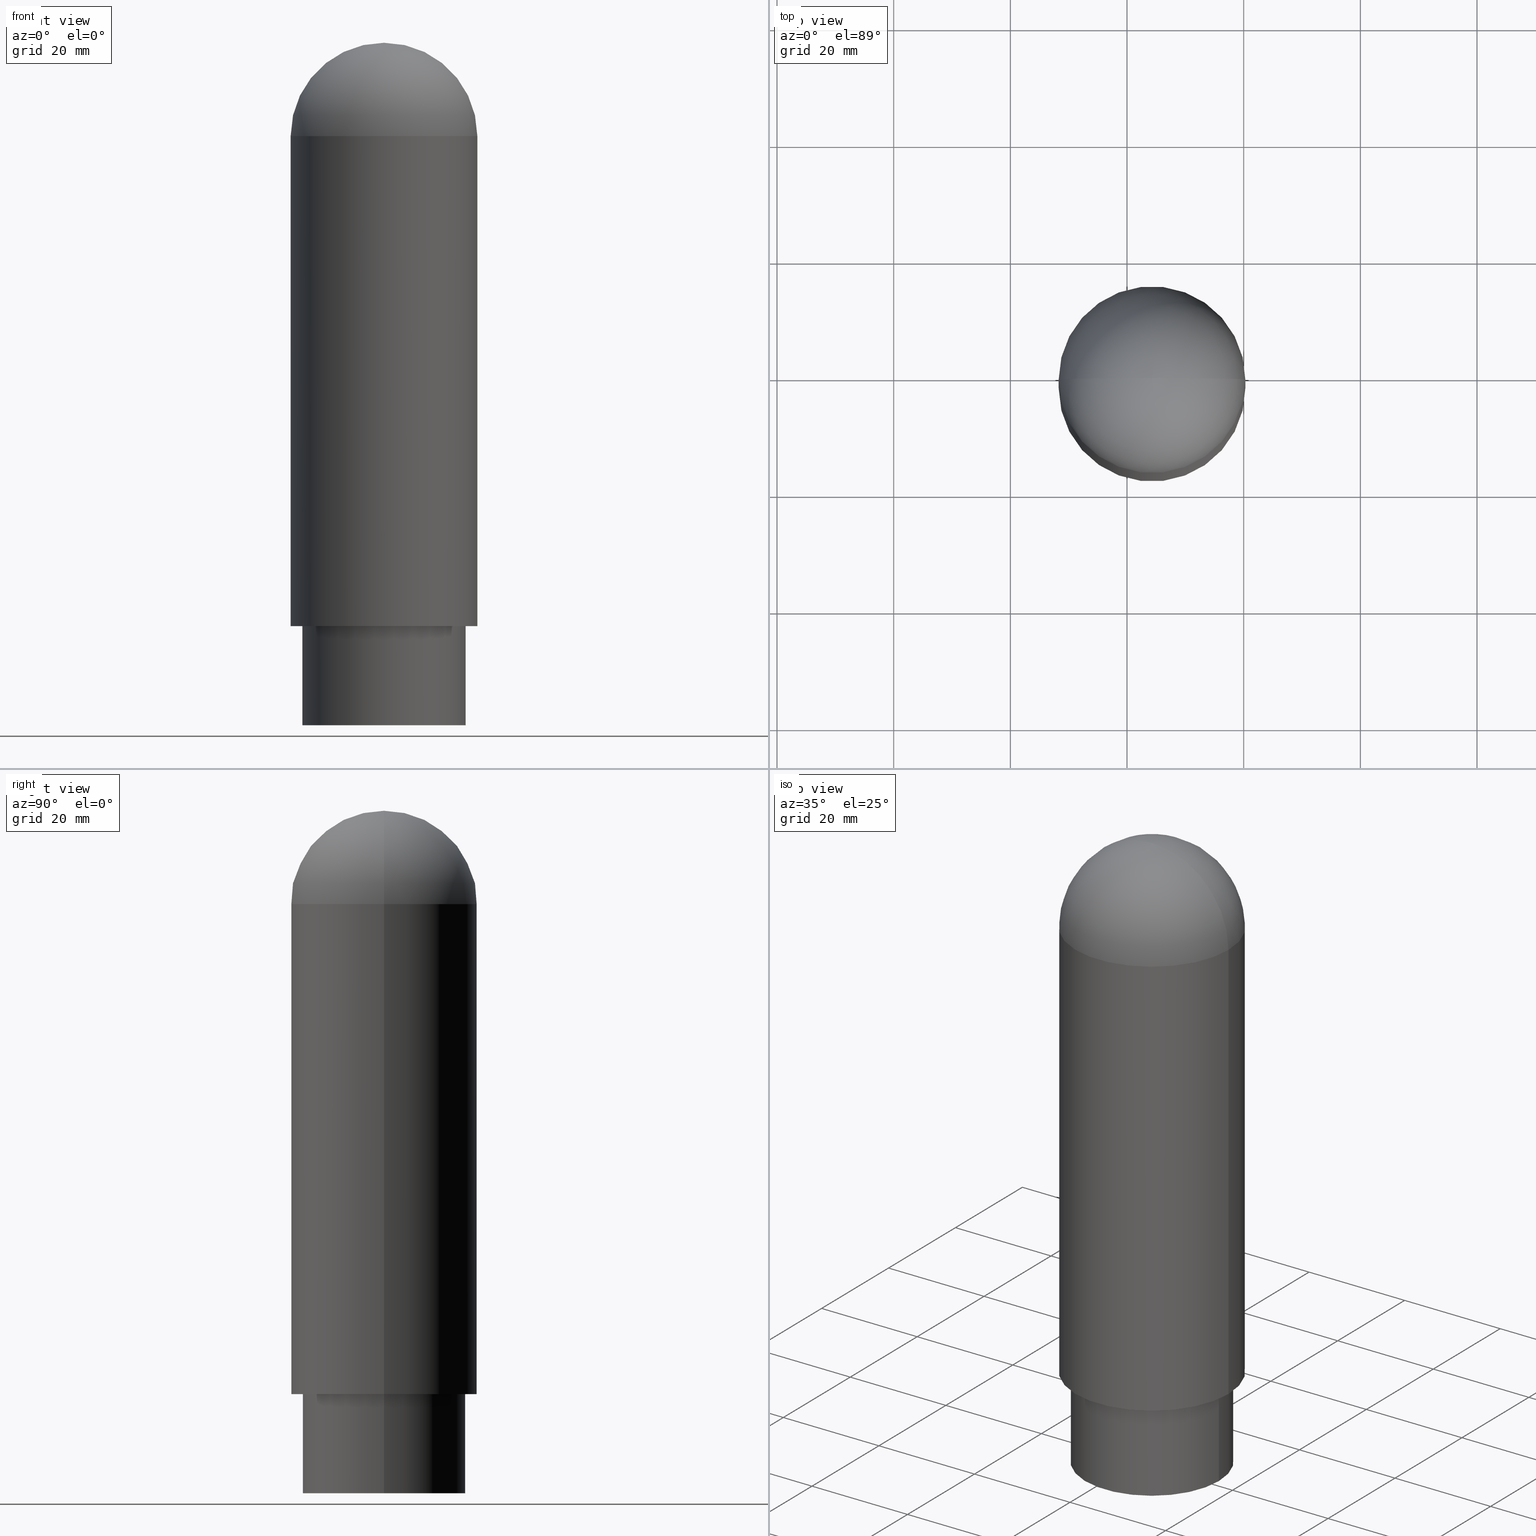
[diagram: canonical four-view strip — front | top / right | iso, engineering-drawing reading convention]
A machine part, canonical four-view strip (front | top / right | iso — engineering-drawing reading convention). The complete STEP part file that produces these views, byte-faithful:
ISO-10303-21;
HEADER;
/****************************************************************
 * Generated by software with PDE/Lib inside                    *
 * PDElib Version 4.0, created Mon Oct 07, 2002 at 18:44:48     *
 * International Technegroup Inc. (www.iti-oh.com)              *
 ****************************************************************/
FILE_DESCRIPTION((''),'2;1');
FILE_NAME('C:\\DATA\\V�KRESY 2004\\UP�NKY\\P��SLU�ENSTV� PRO T̎K� UP�NKY\\606P2.stp','2005-09-29T15:31:26',('CAD'),(''),'Autodesk Inventor 8','Autodesk Inventor 8','');
FILE_SCHEMA(('AUTOMOTIVE_DESIGN { 1 0 10303 214 1 1 1 1 }'));
ENDSEC;
DATA;
#5=APPLICATION_CONTEXT('automotive design');
#6=APPLICATION_PROTOCOL_DEFINITION('Draft International Standard','automotive_design',1998,#5);
#7=PRODUCT_CONTEXT('None',#5,'mechanical');
#8=PRODUCT('Part6','Part6','None',(#7));
#9=PRODUCT_RELATED_PRODUCT_CATEGORY('part','description',(#8));
#10=PRODUCT_DEFINITION_FORMATION('None','None',#8);
#11=PRODUCT_DEFINITION_CONTEXT('part definition',#5,'design');
#12=PRODUCT_DEFINITION('None','None',#10,#11);
#18=(NAMED_UNIT(*)PLANE_ANGLE_UNIT()SI_UNIT($,.RADIAN.));
#19=DIMENSIONAL_EXPONENTS(0.0,0.0,0.0,0.0,0.0,0.0,0.0);
#20=PLANE_ANGLE_MEASURE_WITH_UNIT(PLANE_ANGLE_MEASURE(0.017453292500000),#18);
#24=(CONVERSION_BASED_UNIT('DEGREE',#20)NAMED_UNIT(#19)PLANE_ANGLE_UNIT());
#28=(NAMED_UNIT(*)SI_UNIT($,.STERADIAN.)SOLID_ANGLE_UNIT());
#32=(LENGTH_UNIT()NAMED_UNIT(*)SI_UNIT(.MILLI.,.METRE.));
#34=UNCERTAINTY_MEASURE_WITH_UNIT(LENGTH_MEASURE(0.000001000000000),#32,'DISTANCE_ACCURACY_VALUE','');
#36=(GEOMETRIC_REPRESENTATION_CONTEXT(3)GLOBAL_UNCERTAINTY_ASSIGNED_CONTEXT((#34))GLOBAL_UNIT_ASSIGNED_CONTEXT((#24,#28,#32))REPRESENTATION_CONTEXT('None','None'));
#37=AXIS2_PLACEMENT_3D('',#38,#39,#40);
#38=CARTESIAN_POINT('',(0.0,0.0,0.0));
#39=DIRECTION('',(0.0,0.0,1.0));
#40=DIRECTION('',(1.0,0.0,0.0));
#41=SHAPE_REPRESENTATION('',(#37),#36);
#42=PRODUCT_DEFINITION_SHAPE('','',#12);
#43=SHAPE_DEFINITION_REPRESENTATION(#42,#41);
#44=CARTESIAN_POINT('',(4.283053939901920,-1.613904443833871,0.0));
#45=DIRECTION('',(0.0,0.0,1.0));
#46=DIRECTION('',(-1.0,0.0,0.0));
#47=AXIS2_PLACEMENT_3D('',#44,#45,#46);
#48=CYLINDRICAL_SURFACE('',#47,14.000000000000002);
#49=CARTESIAN_POINT('',(-9.716946060098081,-1.613904443833869,0.0));
#50=VERTEX_POINT('',#49);
#51=CARTESIAN_POINT('',(-9.716946060098081,-1.613904443833869,17.000000000000011));
#52=VERTEX_POINT('',#51);
#53=CARTESIAN_POINT('',(-9.716946060098081,-1.613904443833869,0.0));
#54=DIRECTION('',(0.0,0.0,1.0));
#55=VECTOR('',#54,17.000000000000011);
#56=LINE('',#53,#55);
#57=EDGE_CURVE('',#50,#52,#56,.T.);
#58=ORIENTED_EDGE('',*,*,#57,.F.);
#59=CARTESIAN_POINT('',(18.283053939901922,-1.613904443833869,0.0));
#60=VERTEX_POINT('',#59);
#61=CARTESIAN_POINT('',(4.283053939901920,-1.613904443833871,0.0));
#62=DIRECTION('',(0.0,0.0,-1.0));
#63=DIRECTION('',(-1.0,0.0,0.0));
#64=AXIS2_PLACEMENT_3D('',#61,#62,#63);
#65=CIRCLE('',#64,14.000000000000002);
#66=EDGE_CURVE('',#60,#50,#65,.T.);
#67=ORIENTED_EDGE('',*,*,#66,.F.);
#68=CARTESIAN_POINT('',(18.283053939901922,-1.613904443833869,17.000000000000011));
#69=VERTEX_POINT('',#68);
#70=CARTESIAN_POINT('',(18.283053939901922,-1.613904443833869,17.000000000000011));
#71=DIRECTION('',(0.0,0.0,-1.0));
#72=VECTOR('',#71,17.000000000000011);
#73=LINE('',#70,#72);
#74=EDGE_CURVE('',#69,#60,#73,.T.);
#75=ORIENTED_EDGE('',*,*,#74,.F.);
#76=CARTESIAN_POINT('',(4.283053939901920,-1.613904443833871,17.000000000000011));
#77=DIRECTION('',(0.0,0.0,-1.0));
#78=DIRECTION('',(-1.0,0.0,0.0));
#79=AXIS2_PLACEMENT_3D('',#76,#77,#78);
#80=CIRCLE('',#79,14.000000000000002);
#81=EDGE_CURVE('',#69,#52,#80,.T.);
#82=ORIENTED_EDGE('',*,*,#81,.T.);
#83=EDGE_LOOP('',(#58,#67,#75,#82));
#84=FACE_OUTER_BOUND('',#83,.T.);
#85=ADVANCED_FACE('',(#84),#48,.T.);
#86=CARTESIAN_POINT('',(4.283053939901920,-1.613904443833871,0.0));
#87=DIRECTION('',(0.0,0.0,1.0));
#88=DIRECTION('',(-1.0,0.0,0.0));
#89=AXIS2_PLACEMENT_3D('',#86,#87,#88);
#90=CYLINDRICAL_SURFACE('',#89,11.0);
#91=CARTESIAN_POINT('',(-6.716946060098080,-1.613904443833870,93.0));
#92=VERTEX_POINT('',#91);
#93=CARTESIAN_POINT('',(-6.716946060098080,-1.613904443833870,0.0));
#94=VERTEX_POINT('',#93);
#95=CARTESIAN_POINT('',(-6.716946060098080,-1.613904443833870,93.0));
#96=DIRECTION('',(0.0,0.0,-1.0));
#97=VECTOR('',#96,93.0);
#98=LINE('',#95,#97);
#99=EDGE_CURVE('',#92,#94,#98,.T.);
#100=ORIENTED_EDGE('',*,*,#99,.F.);
#101=CARTESIAN_POINT('',(15.283053939901921,-1.613904443833870,93.0));
#102=VERTEX_POINT('',#101);
#103=CARTESIAN_POINT('',(4.283053939901920,-1.613904443833871,93.0));
#104=DIRECTION('',(0.0,0.0,1.0));
#105=DIRECTION('',(-1.0,0.0,0.0));
#106=AXIS2_PLACEMENT_3D('',#103,#104,#105);
#107=CIRCLE('',#106,11.0);
#108=EDGE_CURVE('',#92,#102,#107,.T.);
#109=ORIENTED_EDGE('',*,*,#108,.T.);
#110=CARTESIAN_POINT('',(15.283053939901921,-1.613904443833870,0.0));
#111=VERTEX_POINT('',#110);
#112=CARTESIAN_POINT('',(15.283053939901921,-1.613904443833870,0.0));
#113=DIRECTION('',(0.0,0.0,1.0));
#114=VECTOR('',#113,93.0);
#115=LINE('',#112,#114);
#116=EDGE_CURVE('',#111,#102,#115,.T.);
#117=ORIENTED_EDGE('',*,*,#116,.F.);
#118=CARTESIAN_POINT('',(4.283053939901920,-1.613904443833871,0.0));
#119=DIRECTION('',(0.0,0.0,1.0));
#120=DIRECTION('',(-1.0,0.0,0.0));
#121=AXIS2_PLACEMENT_3D('',#118,#119,#120);
#122=CIRCLE('',#121,11.0);
#123=EDGE_CURVE('',#94,#111,#122,.T.);
#124=ORIENTED_EDGE('',*,*,#123,.F.);
#125=EDGE_LOOP('',(#100,#109,#117,#124));
#126=FACE_OUTER_BOUND('',#125,.T.);
#127=ADVANCED_FACE('',(#126),#90,.F.);
#128=CARTESIAN_POINT('',(4.283053939901920,-1.613904443833871,101.000000000000010));
#129=DIRECTION('',(0.0,0.0,-1.0));
#130=DIRECTION('',(-1.0,0.0,0.0));
#131=AXIS2_PLACEMENT_3D('',#128,#129,#130);
#132=CYLINDRICAL_SURFACE('',#131,11.500000000000002);
#133=CARTESIAN_POINT('',(-7.216946060098082,-1.613904443833873,93.0));
#134=VERTEX_POINT('',#133);
#135=CARTESIAN_POINT('',(-7.216946060098082,-1.613904443833873,94.500000000000028));
#136=VERTEX_POINT('',#135);
#137=CARTESIAN_POINT('',(-7.216946060098082,-1.613904443833873,93.0));
#138=DIRECTION('',(0.0,0.0,1.0));
#139=VECTOR('',#138,1.500000000000028);
#140=LINE('',#137,#139);
#141=EDGE_CURVE('',#134,#136,#140,.T.);
#142=ORIENTED_EDGE('',*,*,#141,.F.);
#143=CARTESIAN_POINT('',(15.783053939901921,-1.613904443833870,93.0));
#144=VERTEX_POINT('',#143);
#145=CARTESIAN_POINT('',(4.283053939901920,-1.613904443833871,93.0));
#146=DIRECTION('',(0.0,0.0,1.0));
#147=DIRECTION('',(-1.0,0.0,0.0));
#148=AXIS2_PLACEMENT_3D('',#145,#146,#147);
#149=CIRCLE('',#148,11.500000000000002);
#150=EDGE_CURVE('',#144,#134,#149,.T.);
#151=ORIENTED_EDGE('',*,*,#150,.F.);
#152=CARTESIAN_POINT('',(15.783053939901921,-1.613904443833872,94.500000000000014));
#153=VERTEX_POINT('',#152);
#154=CARTESIAN_POINT('',(15.783053939901921,-1.613904443833872,94.500000000000014));
#155=DIRECTION('',(0.0,0.0,-1.0));
#156=VECTOR('',#155,1.500000000000014);
#157=LINE('',#154,#156);
#158=EDGE_CURVE('',#153,#144,#157,.T.);
#159=ORIENTED_EDGE('',*,*,#158,.F.);
#160=CARTESIAN_POINT('',(4.283053939901920,-1.613904443833871,94.500000000000014));
#161=DIRECTION('',(0.0,0.0,1.0));
#162=DIRECTION('',(-1.0,0.0,0.0));
#163=AXIS2_PLACEMENT_3D('',#160,#161,#162);
#164=CIRCLE('',#163,11.500000000000002);
#165=EDGE_CURVE('',#153,#136,#164,.T.);
#166=ORIENTED_EDGE('',*,*,#165,.T.);
#167=EDGE_LOOP('',(#142,#151,#159,#166));
#168=FACE_OUTER_BOUND('',#167,.T.);
#169=ADVANCED_FACE('',(#168),#132,.F.);
#170=CARTESIAN_POINT('',(4.283053939901920,-1.613904443833871,94.250000000000000));
#171=DIRECTION('',(0.0,0.0,1.0));
#172=DIRECTION('',(-1.0,0.0,0.0));
#173=AXIS2_PLACEMENT_3D('',#170,#171,#172);
#174=CONICAL_SURFACE('',#173,11.250000000000000,45.000000000000135);
#175=CARTESIAN_POINT('',(-6.716946060098080,-1.613904443833873,94.000000000000028));
#176=VERTEX_POINT('',#175);
#177=CARTESIAN_POINT('',(-7.216946060098082,-1.613904443833873,94.500000000000028));
#178=DIRECTION('',(0.707106781186549,0.0,-0.707106781186546));
#179=VECTOR('',#178,0.707106781186549);
#180=LINE('',#177,#179);
#181=EDGE_CURVE('',#136,#176,#180,.T.);
#182=ORIENTED_EDGE('',*,*,#181,.F.);
#183=ORIENTED_EDGE('',*,*,#165,.F.);
#184=CARTESIAN_POINT('',(15.283053939901919,-1.613904443833870,94.000000000000028));
#185=VERTEX_POINT('',#184);
#186=CARTESIAN_POINT('',(15.283053939901919,-1.613904443833870,94.000000000000028));
#187=DIRECTION('',(0.707106781186559,-3.140185E-015,0.707106781186536));
#188=VECTOR('',#187,0.707106781186539);
#189=LINE('',#186,#188);
#190=EDGE_CURVE('',#185,#153,#189,.T.);
#191=ORIENTED_EDGE('',*,*,#190,.F.);
#192=CARTESIAN_POINT('',(4.283053939901920,-1.613904443833871,94.000000000000028));
#193=DIRECTION('',(0.0,0.0,1.0));
#194=DIRECTION('',(-1.0,0.0,0.0));
#195=AXIS2_PLACEMENT_3D('',#192,#193,#194);
#196=CIRCLE('',#195,11.0);
#197=EDGE_CURVE('',#185,#176,#196,.T.);
#198=ORIENTED_EDGE('',*,*,#197,.T.);
#199=EDGE_LOOP('',(#182,#183,#191,#198));
#200=FACE_OUTER_BOUND('',#199,.T.);
#201=ADVANCED_FACE('',(#200),#174,.T.);
#202=CARTESIAN_POINT('',(4.283053939901920,-1.613904443833871,17.000000000000011));
#203=DIRECTION('',(0.0,0.0,1.0));
#204=DIRECTION('',(-1.0,0.0,0.0));
#205=AXIS2_PLACEMENT_3D('',#202,#203,#204);
#206=CYLINDRICAL_SURFACE('',#205,16.0);
#207=CARTESIAN_POINT('',(-11.716946060098081,-1.613904443833869,17.000000000000014));
#208=VERTEX_POINT('',#207);
#209=CARTESIAN_POINT('',(-11.716946060098081,-1.613904443833869,101.000000000000010));
#210=VERTEX_POINT('',#209);
#211=CARTESIAN_POINT('',(-11.716946060098081,-1.613904443833869,17.000000000000014));
#212=DIRECTION('',(0.0,0.0,1.0));
#213=VECTOR('',#212,84.0);
#214=LINE('',#211,#213);
#215=EDGE_CURVE('',#208,#210,#214,.T.);
#216=ORIENTED_EDGE('',*,*,#215,.F.);
#217=CARTESIAN_POINT('',(20.283053939901919,-1.613904443833869,17.000000000000011));
#218=VERTEX_POINT('',#217);
#219=CARTESIAN_POINT('',(4.283053939901920,-1.613904443833871,17.000000000000011));
#220=DIRECTION('',(0.0,0.0,-1.0));
#221=DIRECTION('',(-1.0,0.0,0.0));
#222=AXIS2_PLACEMENT_3D('',#219,#220,#221);
#223=CIRCLE('',#222,16.0);
#224=EDGE_CURVE('',#218,#208,#223,.T.);
#225=ORIENTED_EDGE('',*,*,#224,.F.);
#226=CARTESIAN_POINT('',(20.283053939901919,-1.613904443833869,101.000000000000010));
#227=VERTEX_POINT('',#226);
#228=CARTESIAN_POINT('',(20.283053939901919,-1.613904443833869,101.000000000000010));
#229=DIRECTION('',(0.0,0.0,-1.0));
#230=VECTOR('',#229,84.0);
#231=LINE('',#228,#230);
#232=EDGE_CURVE('',#227,#218,#231,.T.);
#233=ORIENTED_EDGE('',*,*,#232,.F.);
#234=CARTESIAN_POINT('',(4.283053939901920,-1.613904443833871,101.000000000000010));
#235=DIRECTION('',(0.0,0.0,1.0));
#236=DIRECTION('',(-1.0,0.0,0.0));
#237=AXIS2_PLACEMENT_3D('',#234,#235,#236);
#238=CIRCLE('',#237,16.0);
#239=EDGE_CURVE('',#210,#227,#238,.T.);
#240=ORIENTED_EDGE('',*,*,#239,.F.);
#241=EDGE_LOOP('',(#216,#225,#233,#240));
#242=FACE_OUTER_BOUND('',#241,.T.);
#243=ADVANCED_FACE('',(#242),#206,.T.);
#244=CARTESIAN_POINT('',(4.283053939901920,-1.613904443833871,101.000000000000010));
#245=DIRECTION('',(0.0,0.0,1.0));
#246=DIRECTION('',(1.0,0.0,0.0));
#247=AXIS2_PLACEMENT_3D('',#244,#245,#246);
#248=SPHERICAL_SURFACE('',#247,16.0);
#249=CARTESIAN_POINT('',(4.283053939901920,-1.613904443833871,101.000000000000010));
#250=DIRECTION('',(0.0,-1.0,0.0));
#251=DIRECTION('',(0.0,0.0,1.0));
#252=AXIS2_PLACEMENT_3D('',#249,#250,#251);
#253=CIRCLE('',#252,16.0);
#254=EDGE_CURVE('',#227,#210,#253,.T.);
#255=ORIENTED_EDGE('',*,*,#254,.F.);
#256=CARTESIAN_POINT('',(4.283053939901920,-1.613904443833871,101.000000000000010));
#257=DIRECTION('',(0.0,0.0,1.0));
#258=DIRECTION('',(-1.0,0.0,0.0));
#259=AXIS2_PLACEMENT_3D('',#256,#257,#258);
#260=CIRCLE('',#259,16.0);
#261=EDGE_CURVE('',#227,#210,#260,.T.);
#262=ORIENTED_EDGE('',*,*,#261,.T.);
#263=EDGE_LOOP('',(#255,#262));
#264=FACE_OUTER_BOUND('',#263,.T.);
#265=ADVANCED_FACE('',(#264),#248,.T.);
#266=CARTESIAN_POINT('',(4.283053939901920,-1.613904443833871,101.000000000000010));
#267=DIRECTION('',(0.0,0.0,1.0));
#268=DIRECTION('',(1.0,0.0,0.0));
#269=AXIS2_PLACEMENT_3D('',#266,#267,#268);
#270=SPHERICAL_SURFACE('',#269,16.0);
#271=ORIENTED_EDGE('',*,*,#254,.T.);
#272=ORIENTED_EDGE('',*,*,#239,.T.);
#273=EDGE_LOOP('',(#271,#272));
#274=FACE_OUTER_BOUND('',#273,.T.);
#275=ADVANCED_FACE('',(#274),#270,.T.);
#276=CARTESIAN_POINT('',(4.283053939901920,-1.613904443833871,17.000000000000011));
#277=DIRECTION('',(0.0,0.0,1.0));
#278=DIRECTION('',(-1.0,0.0,0.0));
#279=AXIS2_PLACEMENT_3D('',#276,#277,#278);
#280=CYLINDRICAL_SURFACE('',#279,16.0);
#281=ORIENTED_EDGE('',*,*,#215,.T.);
#282=ORIENTED_EDGE('',*,*,#261,.F.);
#283=ORIENTED_EDGE('',*,*,#232,.T.);
#284=CARTESIAN_POINT('',(4.283053939901920,-1.613904443833871,17.000000000000011));
#285=DIRECTION('',(0.0,0.0,-1.0));
#286=DIRECTION('',(-1.0,0.0,0.0));
#287=AXIS2_PLACEMENT_3D('',#284,#285,#286);
#288=CIRCLE('',#287,16.0);
#289=EDGE_CURVE('',#208,#218,#288,.T.);
#290=ORIENTED_EDGE('',*,*,#289,.F.);
#291=EDGE_LOOP('',(#281,#282,#283,#290));
#292=FACE_OUTER_BOUND('',#291,.T.);
#293=ADVANCED_FACE('',(#292),#280,.T.);
#294=CARTESIAN_POINT('',(4.283053939901920,-1.613904443833871,17.000000000000011));
#295=DIRECTION('',(0.0,0.0,-1.0));
#296=DIRECTION('',(-1.0,0.0,0.0));
#297=AXIS2_PLACEMENT_3D('',#294,#295,#296);
#298=PLANE('',#297);
#299=ORIENTED_EDGE('',*,*,#224,.T.);
#300=ORIENTED_EDGE('',*,*,#289,.T.);
#301=EDGE_LOOP('',(#299,#300));
#302=FACE_OUTER_BOUND('',#301,.T.);
#303=ORIENTED_EDGE('',*,*,#81,.F.);
#304=CARTESIAN_POINT('',(4.283053939901920,-1.613904443833871,17.000000000000011));
#305=DIRECTION('',(0.0,0.0,-1.0));
#306=DIRECTION('',(-1.0,0.0,0.0));
#307=AXIS2_PLACEMENT_3D('',#304,#305,#306);
#308=CIRCLE('',#307,14.000000000000002);
#309=EDGE_CURVE('',#52,#69,#308,.T.);
#310=ORIENTED_EDGE('',*,*,#309,.F.);
#311=EDGE_LOOP('',(#303,#310));
#312=FACE_BOUND('',#311,.T.);
#313=ADVANCED_FACE('',(#302,#312),#298,.T.);
#314=CARTESIAN_POINT('',(4.283053939901920,-1.613904443833871,94.250000000000000));
#315=DIRECTION('',(0.0,0.0,1.0));
#316=DIRECTION('',(-1.0,0.0,0.0));
#317=AXIS2_PLACEMENT_3D('',#314,#315,#316);
#318=CONICAL_SURFACE('',#317,11.250000000000000,45.000000000000135);
#319=ORIENTED_EDGE('',*,*,#181,.T.);
#320=CARTESIAN_POINT('',(4.283053939901920,-1.613904443833871,94.000000000000028));
#321=DIRECTION('',(0.0,0.0,1.0));
#322=DIRECTION('',(-1.0,0.0,0.0));
#323=AXIS2_PLACEMENT_3D('',#320,#321,#322);
#324=CIRCLE('',#323,11.0);
#325=EDGE_CURVE('',#176,#185,#324,.T.);
#326=ORIENTED_EDGE('',*,*,#325,.T.);
#327=ORIENTED_EDGE('',*,*,#190,.T.);
#328=CARTESIAN_POINT('',(4.283053939901920,-1.613904443833871,94.500000000000014));
#329=DIRECTION('',(0.0,0.0,1.0));
#330=DIRECTION('',(-1.0,0.0,0.0));
#331=AXIS2_PLACEMENT_3D('',#328,#329,#330);
#332=CIRCLE('',#331,11.500000000000002);
#333=EDGE_CURVE('',#136,#153,#332,.T.);
#334=ORIENTED_EDGE('',*,*,#333,.F.);
#335=EDGE_LOOP('',(#319,#326,#327,#334));
#336=FACE_OUTER_BOUND('',#335,.T.);
#337=ADVANCED_FACE('',(#336),#318,.T.);
#338=CARTESIAN_POINT('',(4.283053939901920,-1.613904443833871,94.000000000000028));
#339=DIRECTION('',(0.0,0.0,1.0));
#340=DIRECTION('',(-1.0,0.0,0.0));
#341=AXIS2_PLACEMENT_3D('',#338,#339,#340);
#342=PLANE('',#341);
#343=ORIENTED_EDGE('',*,*,#197,.F.);
#344=ORIENTED_EDGE('',*,*,#325,.F.);
#345=EDGE_LOOP('',(#343,#344));
#346=FACE_OUTER_BOUND('',#345,.T.);
#347=ADVANCED_FACE('',(#346),#342,.F.);
#348=CARTESIAN_POINT('',(4.283053939901920,-1.613904443833871,101.000000000000010));
#349=DIRECTION('',(0.0,0.0,-1.0));
#350=DIRECTION('',(-1.0,0.0,0.0));
#351=AXIS2_PLACEMENT_3D('',#348,#349,#350);
#352=CYLINDRICAL_SURFACE('',#351,11.500000000000002);
#353=ORIENTED_EDGE('',*,*,#141,.T.);
#354=ORIENTED_EDGE('',*,*,#333,.T.);
#355=ORIENTED_EDGE('',*,*,#158,.T.);
#356=CARTESIAN_POINT('',(4.283053939901920,-1.613904443833871,93.0));
#357=DIRECTION('',(0.0,0.0,1.0));
#358=DIRECTION('',(-1.0,0.0,0.0));
#359=AXIS2_PLACEMENT_3D('',#356,#357,#358);
#360=CIRCLE('',#359,11.500000000000002);
#361=EDGE_CURVE('',#134,#144,#360,.T.);
#362=ORIENTED_EDGE('',*,*,#361,.F.);
#363=EDGE_LOOP('',(#353,#354,#355,#362));
#364=FACE_OUTER_BOUND('',#363,.T.);
#365=ADVANCED_FACE('',(#364),#352,.F.);
#366=CARTESIAN_POINT('',(4.283053939901920,-1.613904443833871,93.0));
#367=DIRECTION('',(0.0,0.0,-1.0));
#368=DIRECTION('',(-1.0,0.0,0.0));
#369=AXIS2_PLACEMENT_3D('',#366,#367,#368);
#370=PLANE('',#369);
#371=ORIENTED_EDGE('',*,*,#150,.T.);
#372=ORIENTED_EDGE('',*,*,#361,.T.);
#373=EDGE_LOOP('',(#371,#372));
#374=FACE_OUTER_BOUND('',#373,.T.);
#375=CARTESIAN_POINT('',(4.283053939901920,-1.613904443833871,93.0));
#376=DIRECTION('',(0.0,0.0,1.0));
#377=DIRECTION('',(-1.0,0.0,0.0));
#378=AXIS2_PLACEMENT_3D('',#375,#376,#377);
#379=CIRCLE('',#378,11.0);
#380=EDGE_CURVE('',#102,#92,#379,.T.);
#381=ORIENTED_EDGE('',*,*,#380,.F.);
#382=ORIENTED_EDGE('',*,*,#108,.F.);
#383=EDGE_LOOP('',(#381,#382));
#384=FACE_BOUND('',#383,.T.);
#385=ADVANCED_FACE('',(#374,#384),#370,.F.);
#386=CARTESIAN_POINT('',(4.283053939901920,-1.613904443833871,0.0));
#387=DIRECTION('',(0.0,0.0,1.0));
#388=DIRECTION('',(-1.0,0.0,0.0));
#389=AXIS2_PLACEMENT_3D('',#386,#387,#388);
#390=CYLINDRICAL_SURFACE('',#389,11.0);
#391=ORIENTED_EDGE('',*,*,#99,.T.);
#392=CARTESIAN_POINT('',(4.283053939901920,-1.613904443833871,0.0));
#393=DIRECTION('',(0.0,0.0,1.0));
#394=DIRECTION('',(-1.0,0.0,0.0));
#395=AXIS2_PLACEMENT_3D('',#392,#393,#394);
#396=CIRCLE('',#395,11.0);
#397=EDGE_CURVE('',#111,#94,#396,.T.);
#398=ORIENTED_EDGE('',*,*,#397,.F.);
#399=ORIENTED_EDGE('',*,*,#116,.T.);
#400=ORIENTED_EDGE('',*,*,#380,.T.);
#401=EDGE_LOOP('',(#391,#398,#399,#400));
#402=FACE_OUTER_BOUND('',#401,.T.);
#403=ADVANCED_FACE('',(#402),#390,.F.);
#404=CARTESIAN_POINT('',(4.283053939901920,-1.613904443833871,0.0));
#405=DIRECTION('',(0.0,0.0,1.0));
#406=DIRECTION('',(-1.0,0.0,0.0));
#407=AXIS2_PLACEMENT_3D('',#404,#405,#406);
#408=CYLINDRICAL_SURFACE('',#407,14.000000000000002);
#409=ORIENTED_EDGE('',*,*,#57,.T.);
#410=ORIENTED_EDGE('',*,*,#309,.T.);
#411=ORIENTED_EDGE('',*,*,#74,.T.);
#412=CARTESIAN_POINT('',(4.283053939901920,-1.613904443833871,0.0));
#413=DIRECTION('',(0.0,0.0,-1.0));
#414=DIRECTION('',(-1.0,0.0,0.0));
#415=AXIS2_PLACEMENT_3D('',#412,#413,#414);
#416=CIRCLE('',#415,14.000000000000002);
#417=EDGE_CURVE('',#50,#60,#416,.T.);
#418=ORIENTED_EDGE('',*,*,#417,.F.);
#419=EDGE_LOOP('',(#409,#410,#411,#418));
#420=FACE_OUTER_BOUND('',#419,.T.);
#421=ADVANCED_FACE('',(#420),#408,.T.);
#422=CARTESIAN_POINT('',(4.283053939901920,-1.613904443833871,0.0));
#423=DIRECTION('',(0.0,0.0,-1.0));
#424=DIRECTION('',(-1.0,0.0,0.0));
#425=AXIS2_PLACEMENT_3D('',#422,#423,#424);
#426=PLANE('',#425);
#427=ORIENTED_EDGE('',*,*,#66,.T.);
#428=ORIENTED_EDGE('',*,*,#417,.T.);
#429=EDGE_LOOP('',(#427,#428));
#430=FACE_OUTER_BOUND('',#429,.T.);
#431=ORIENTED_EDGE('',*,*,#397,.T.);
#432=ORIENTED_EDGE('',*,*,#123,.T.);
#433=EDGE_LOOP('',(#431,#432));
#434=FACE_BOUND('',#433,.T.);
#435=ADVANCED_FACE('',(#430,#434),#426,.T.);
#436=CLOSED_SHELL('',(#85,#127,#169,#201,#243,#265,#275,#293,#313,#337,#347,#365,#385,#403,#421,#435));
#437=MANIFOLD_SOLID_BREP('',#436);
#438=COLOUR_RGB('Metal-Steel',0.639216005802155,0.639216005802155,0.686275005340576);
#439=FILL_AREA_STYLE_COLOUR('Metal-Steel',#438);
#440=FILL_AREA_STYLE('Metal-Steel',(#439));
#441=SURFACE_STYLE_FILL_AREA(#440);
#442=SURFACE_SIDE_STYLE('Metal-Steel',(#441));
#443=SURFACE_STYLE_USAGE(.BOTH.,#442);
#444=PRESENTATION_STYLE_ASSIGNMENT((#443));
#445=STYLED_ITEM('',(#444),#437);
#446=MECHANICAL_DESIGN_GEOMETRIC_PRESENTATION_REPRESENTATION('',(#445),#36);
#447=ADVANCED_BREP_SHAPE_REPRESENTATION('ABSR',(#437),#36);
#448=SHAPE_REPRESENTATION_RELATIONSHIP('SRR','None',#447,#41);
ENDSEC;
END-ISO-10303-21;
